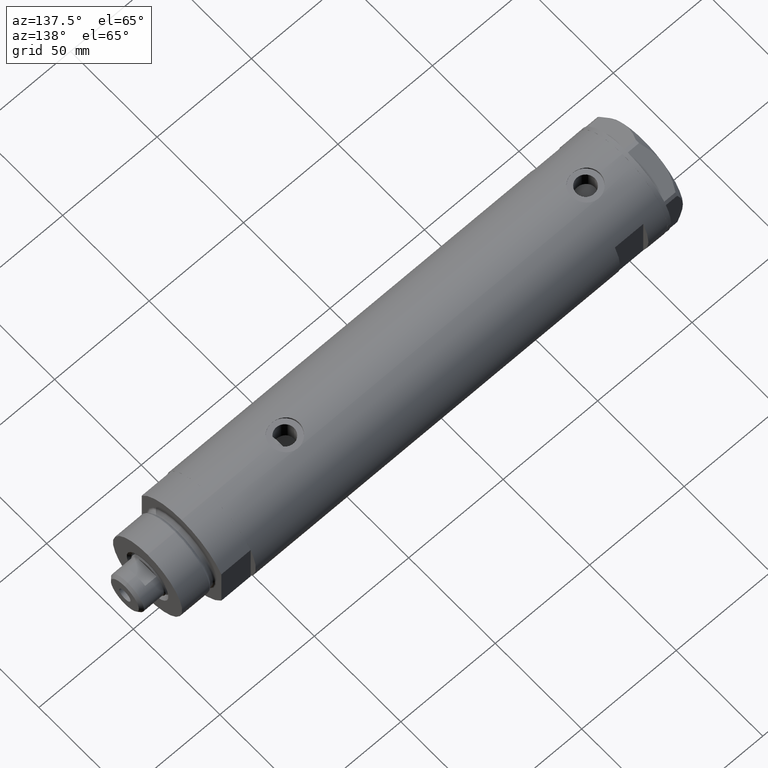
[diagram: clean part render]
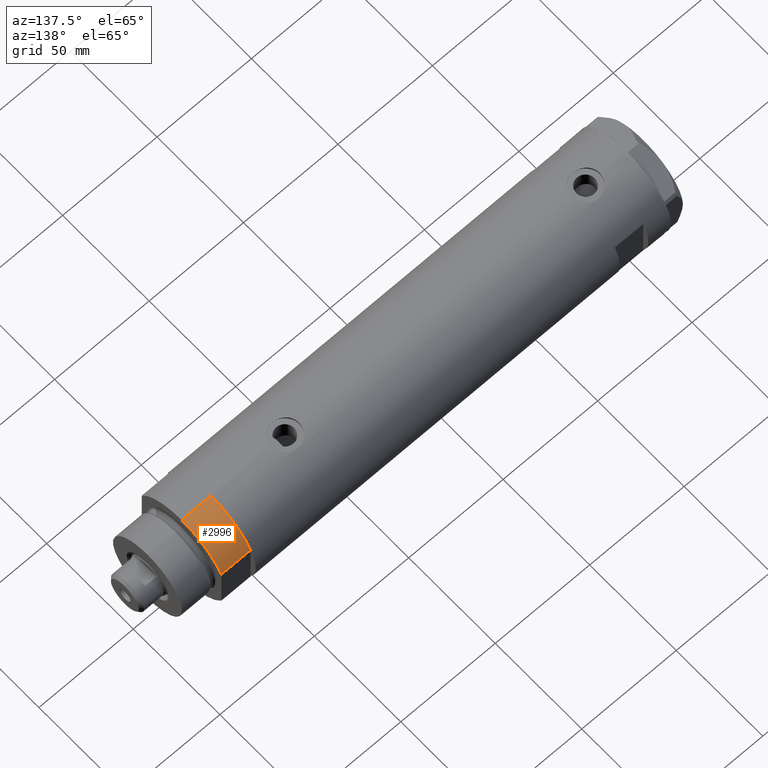
[diagram: same view with one face highlighted and labeled with its STEP entity id]
A machine part, auxiliary view. The second image highlights one B-rep face of the part: STEP entity #2996.
In plain terms, the highlighted cylindrical surface (partial cylindrical patch) has radius 26 mm, axis along (-1, -0, 0).
Its self-contained STEP definition (entity closure, byte-faithful):
#90 = EDGE_CURVE ( 'NONE', #3027, #1209, #3057, .T. ) ;
#234 = CYLINDRICAL_SURFACE ( 'NONE', #3303, 26.00000000000000355 ) ;
#282 = CARTESIAN_POINT ( 'NONE',  ( -26.00000000000000355, 0.000000000000000000, 0.000000000000000000 ) ) ;
#310 = DIRECTION ( 'NONE',  ( -0.000000000000000000, -0.000000000000000000, -1.000000000000000000 ) ) ;
#545 = ORIENTED_EDGE ( 'NONE', *, *, #5050, .F. ) ;
#547 = VECTOR ( 'NONE', #3858, 1000.000000000000000 ) ;
#639 = LINE ( 'NONE', #2545, #547 ) ;
#658 = FACE_OUTER_BOUND ( 'NONE', #4853, .T. ) ;
#1209 = VERTEX_POINT ( 'NONE', #1665 ) ;
#1210 = VECTOR ( 'NONE', #2753, 1000.000000000000000 ) ;
#1336 = DIRECTION ( 'NONE',  ( 0.000000000000000000, 0.000000000000000000, 1.000000000000000000 ) ) ;
#1436 = CARTESIAN_POINT ( 'NONE',  ( 0.000000000000000000, 0.000000000000000000, 15.50000000000000000 ) ) ;
#1498 = ORIENTED_EDGE ( 'NONE', *, *, #90, .F. ) ;
#1522 = DIRECTION ( 'NONE',  ( -1.000000000000000000, 0.000000000000000000, 0.000000000000000000 ) ) ;
#1613 = VERTEX_POINT ( 'NONE', #282 ) ;
#1665 = CARTESIAN_POINT ( 'NONE',  ( -26.00000000000000355, 0.000000000000000000, 15.50000000000000000 ) ) ;
#1832 = CARTESIAN_POINT ( 'NONE',  ( 0.000000000000000000, 0.000000000000000000, 15.50000000000000000 ) ) ;
#1876 = CARTESIAN_POINT ( 'NONE',  ( -12.12435565298215145, 23.00000000000000355, 0.000000000000000000 ) ) ;
#2123 = CARTESIAN_POINT ( 'NONE',  ( 0.000000000000000000, 0.000000000000000000, 0.000000000000000000 ) ) ;
#2163 = CIRCLE ( 'NONE', #3849, 26.00000000000000355 ) ;
#2194 = CARTESIAN_POINT ( 'NONE',  ( -12.12435565298215145, 23.00000000000000355, 0.000000000000000000 ) ) ;
#2494 = CARTESIAN_POINT ( 'NONE',  ( -12.12435565298214613, 23.00000000000000355, 15.50000000000000000 ) ) ;
#2529 = EDGE_CURVE ( 'NONE', #4808, #1613, #2163, .T. ) ;
#2545 = CARTESIAN_POINT ( 'NONE',  ( -26.00000000000000355, 0.000000000000000000, 15.50000000000000000 ) ) ;
#2725 = AXIS2_PLACEMENT_3D ( 'NONE', #1436, #1336, #3021 ) ;
#2753 = DIRECTION ( 'NONE',  ( -0.000000000000000000, -0.000000000000000000, 1.000000000000000000 ) ) ;
#2996 = ADVANCED_FACE ( 'NONE', ( #658 ), #234, .T. ) ;
#3021 = DIRECTION ( 'NONE',  ( 1.000000000000000000, 0.000000000000000000, 0.000000000000000000 ) ) ;
#3027 = VERTEX_POINT ( 'NONE', #2494 ) ;
#3057 = CIRCLE ( 'NONE', #2725, 26.00000000000000355 ) ;
#3303 = AXIS2_PLACEMENT_3D ( 'NONE', #1832, #310, #1522 ) ;
#3342 = DIRECTION ( 'NONE',  ( 1.000000000000000000, 0.000000000000000000, 0.000000000000000000 ) ) ;
#3377 = EDGE_CURVE ( 'NONE', #4808, #3027, #4716, .T. ) ;
#3680 = DIRECTION ( 'NONE',  ( 0.000000000000000000, 0.000000000000000000, 1.000000000000000000 ) ) ;
#3849 = AXIS2_PLACEMENT_3D ( 'NONE', #2123, #3680, #3342 ) ;
#3858 = DIRECTION ( 'NONE',  ( -0.000000000000000000, -0.000000000000000000, -1.000000000000000000 ) ) ;
#4144 = ORIENTED_EDGE ( 'NONE', *, *, #3377, .F. ) ;
#4716 = LINE ( 'NONE', #1876, #1210 ) ;
#4808 = VERTEX_POINT ( 'NONE', #2194 ) ;
#4853 = EDGE_LOOP ( 'NONE', ( #545, #1498, #4144, #5160 ) ) ;
#5050 = EDGE_CURVE ( 'NONE', #1209, #1613, #639, .T. ) ;
#5160 = ORIENTED_EDGE ( 'NONE', *, *, #2529, .T. ) ;